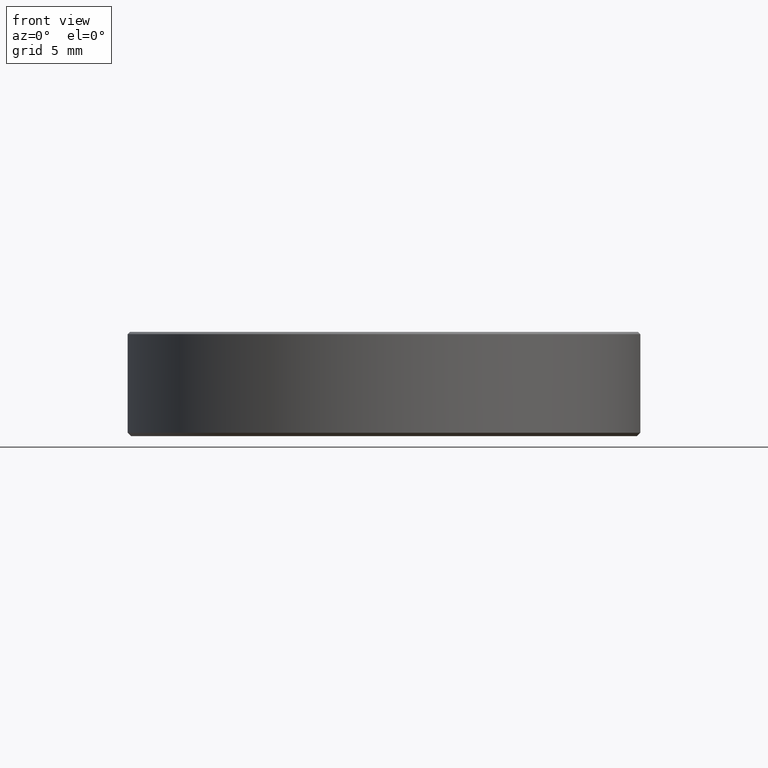
[diagram: clean part render]
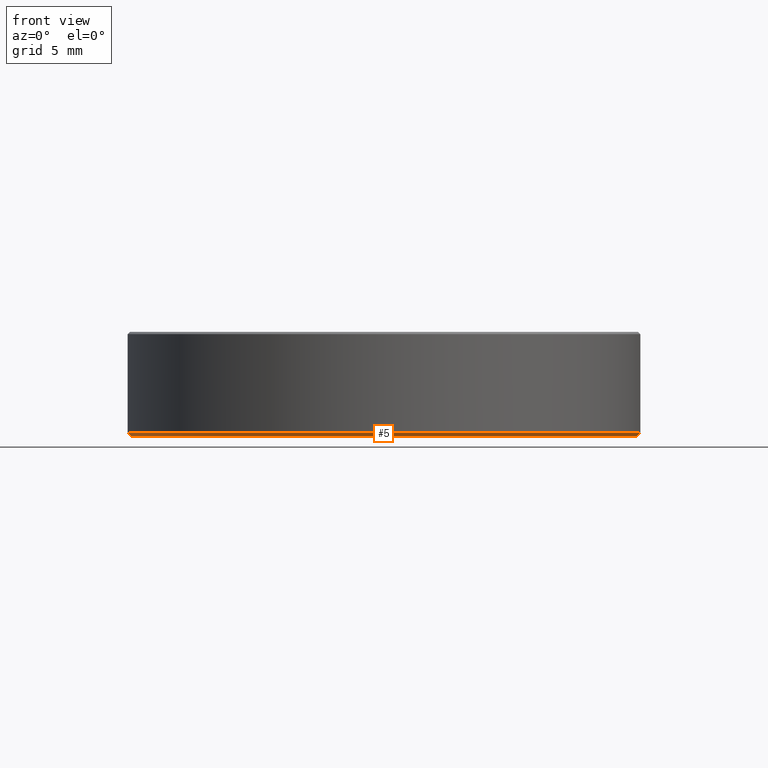
[diagram: same view with one face highlighted and labeled with its STEP entity id]
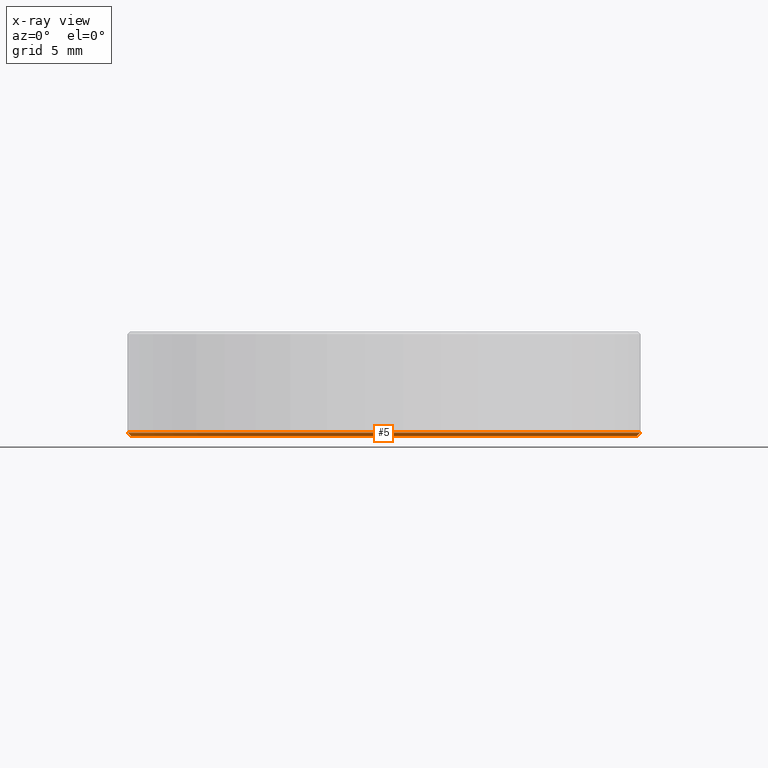
[diagram: x-ray of the same camera — body ghosted, the highlighted face saturated]
A machine part, front view. The second image highlights one B-rep face of the part: STEP entity #5.
The next image is the same camera in x-ray: the body ghosted, the highlighted face saturated — about 0% of this face is hidden behind the body in this view.
In plain terms, the highlighted conical surface has half-angle 45 deg.
Its self-contained STEP definition (entity closure, byte-faithful):
#5 = ADVANCED_FACE ( 'NONE', ( #243 ), #202, .T. ) ;
#16 = AXIS2_PLACEMENT_3D ( 'NONE', #64, #77, #117 ) ;
#20 = CARTESIAN_POINT ( 'NONE',  ( -15.00000000000000000, 1.836970198721029589E-15, 0.2000000000000118072 ) ) ;
#27 = DIRECTION ( 'NONE',  ( -0.000000000000000000, -0.000000000000000000, 1.000000000000000000 ) ) ;
#30 = CARTESIAN_POINT ( 'NONE',  ( 0.000000000000000000, 0.000000000000000000, 9.184850993605147944E-16 ) ) ;
#32 = CIRCLE ( 'NONE', #182, 15.00000000000000000 ) ;
#36 = EDGE_CURVE ( 'NONE', #225, #223, #32, .T. ) ;
#40 = ORIENTED_EDGE ( 'NONE', *, *, #100, .F. ) ;
#43 = VERTEX_POINT ( 'NONE', #106 ) ;
#49 = CARTESIAN_POINT ( 'NONE',  ( -14.79999999999999183, 1.824723730729555049E-15, 9.184850993605147944E-16 ) ) ;
#50 = CARTESIAN_POINT ( 'NONE',  ( 0.000000000000000000, 0.000000000000000000, 0.2000000000000118072 ) ) ;
#56 = EDGE_CURVE ( 'NONE', #115, #225, #146, .T. ) ;
#63 = VECTOR ( 'NONE', #161, 1000.000000000000000 ) ;
#64 = CARTESIAN_POINT ( 'NONE',  ( 0.000000000000000000, 0.000000000000000000, 0.2000000000000118072 ) ) ;
#77 = DIRECTION ( 'NONE',  ( -0.000000000000000000, -0.000000000000000000, 1.000000000000000000 ) ) ;
#91 = DIRECTION ( 'NONE',  ( 1.000000000000000000, 0.000000000000000000, 0.000000000000000000 ) ) ;
#100 = EDGE_CURVE ( 'NONE', #43, #115, #174, .T. ) ;
#103 = EDGE_LOOP ( 'NONE', ( #187, #40, #247, #164 ) ) ;
#106 = CARTESIAN_POINT ( 'NONE',  ( 14.79999999999999183, 0.000000000000000000, 9.184850993605147944E-16 ) ) ;
#108 = DIRECTION ( 'NONE',  ( 1.000000000000000000, 0.000000000000000000, 0.000000000000000000 ) ) ;
#115 = VERTEX_POINT ( 'NONE', #49 ) ;
#117 = DIRECTION ( 'NONE',  ( 1.000000000000000000, 0.000000000000000000, 0.000000000000000000 ) ) ;
#122 = CARTESIAN_POINT ( 'NONE',  ( -15.00000000000000000, 1.836970198721029194E-15, 0.2000000000000118072 ) ) ;
#126 = DIRECTION ( 'NONE',  ( -0.7071067811865414665, 8.659560562354857670E-17, 0.7071067811865536790 ) ) ;
#131 = CARTESIAN_POINT ( 'NONE',  ( 15.00000000000000000, 0.000000000000000000, 0.2000000000000118072 ) ) ;
#132 = CARTESIAN_POINT ( 'NONE',  ( 15.00000000000000000, 0.000000000000000000, 0.2000000000000118072 ) ) ;
#146 = LINE ( 'NONE', #122, #237 ) ;
#161 = DIRECTION ( 'NONE',  ( 0.7071067811865414665, 0.000000000000000000, 0.7071067811865536790 ) ) ;
#164 = ORIENTED_EDGE ( 'NONE', *, *, #36, .F. ) ;
#174 = CIRCLE ( 'NONE', #228, 14.79999999999999183 ) ;
#182 = AXIS2_PLACEMENT_3D ( 'NONE', #50, #27, #91 ) ;
#187 = ORIENTED_EDGE ( 'NONE', *, *, #56, .F. ) ;
#192 = DIRECTION ( 'NONE',  ( 0.000000000000000000, 0.000000000000000000, -1.000000000000000000 ) ) ;
#202 = CONICAL_SURFACE ( 'NONE', #16, 15.00000000000000000, 0.7853981633974396193 ) ;
#222 = EDGE_CURVE ( 'NONE', #43, #223, #235, .T. ) ;
#223 = VERTEX_POINT ( 'NONE', #131 ) ;
#225 = VERTEX_POINT ( 'NONE', #20 ) ;
#228 = AXIS2_PLACEMENT_3D ( 'NONE', #30, #192, #108 ) ;
#235 = LINE ( 'NONE', #132, #63 ) ;
#237 = VECTOR ( 'NONE', #126, 1000.000000000000000 ) ;
#243 = FACE_OUTER_BOUND ( 'NONE', #103, .T. ) ;
#247 = ORIENTED_EDGE ( 'NONE', *, *, #222, .T. ) ;